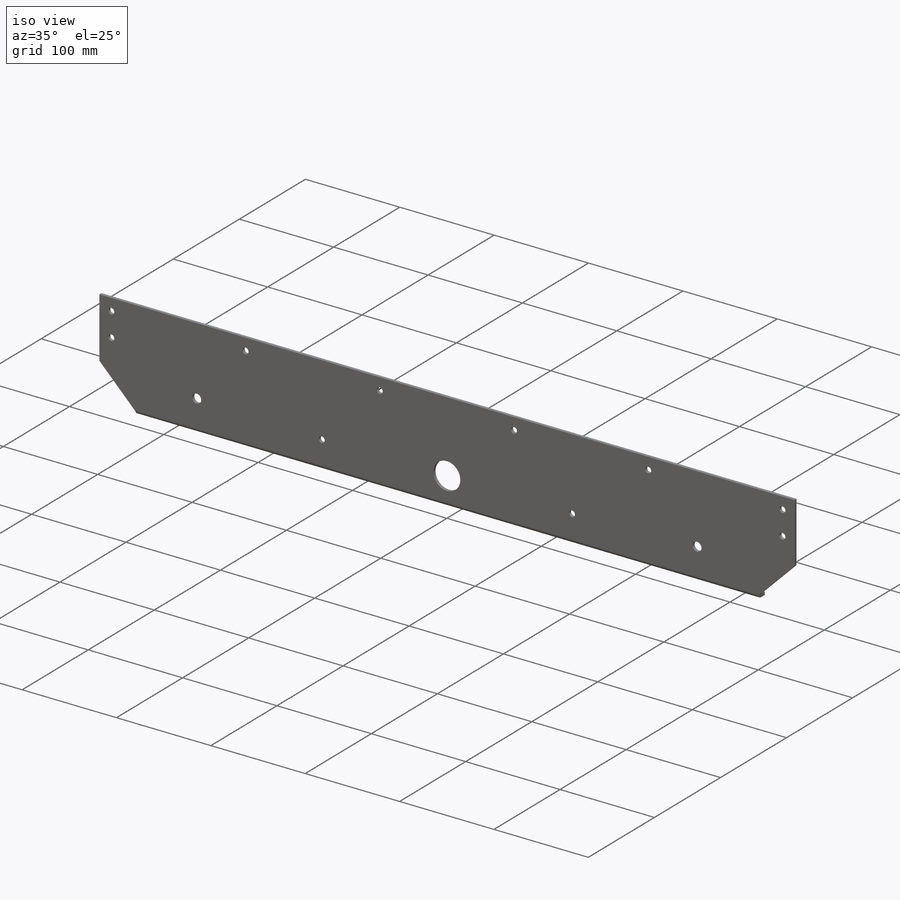
[diagram: iso view]
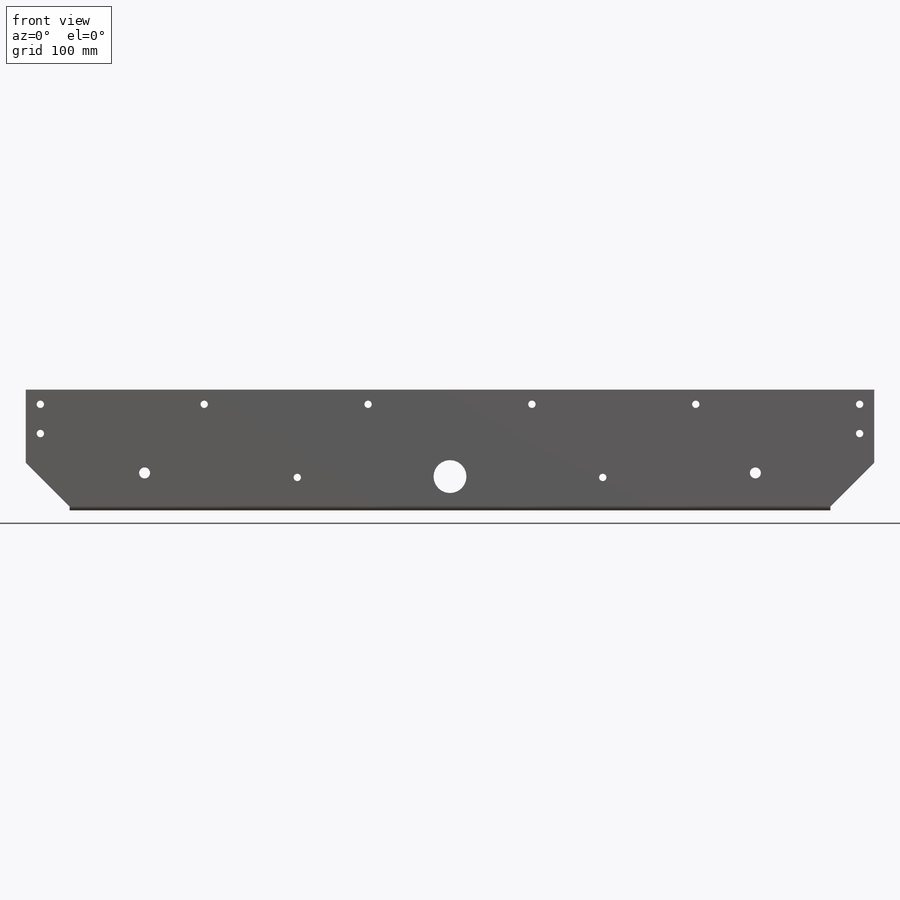
[diagram: front view]
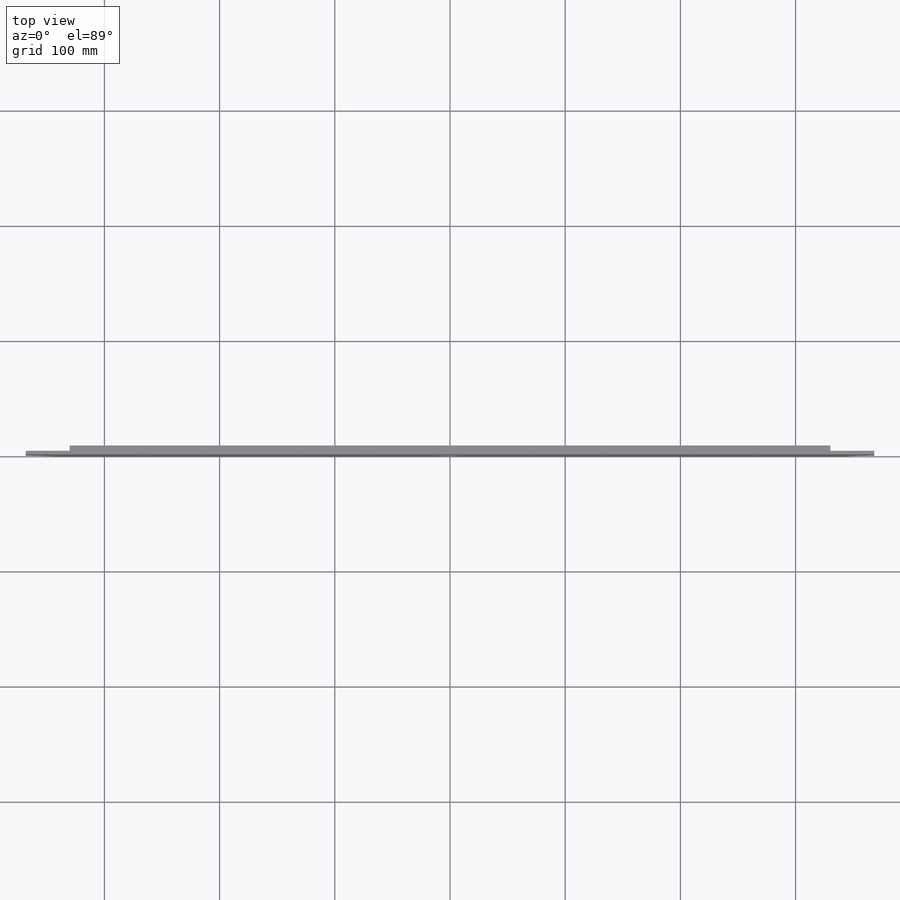
[diagram: top view]
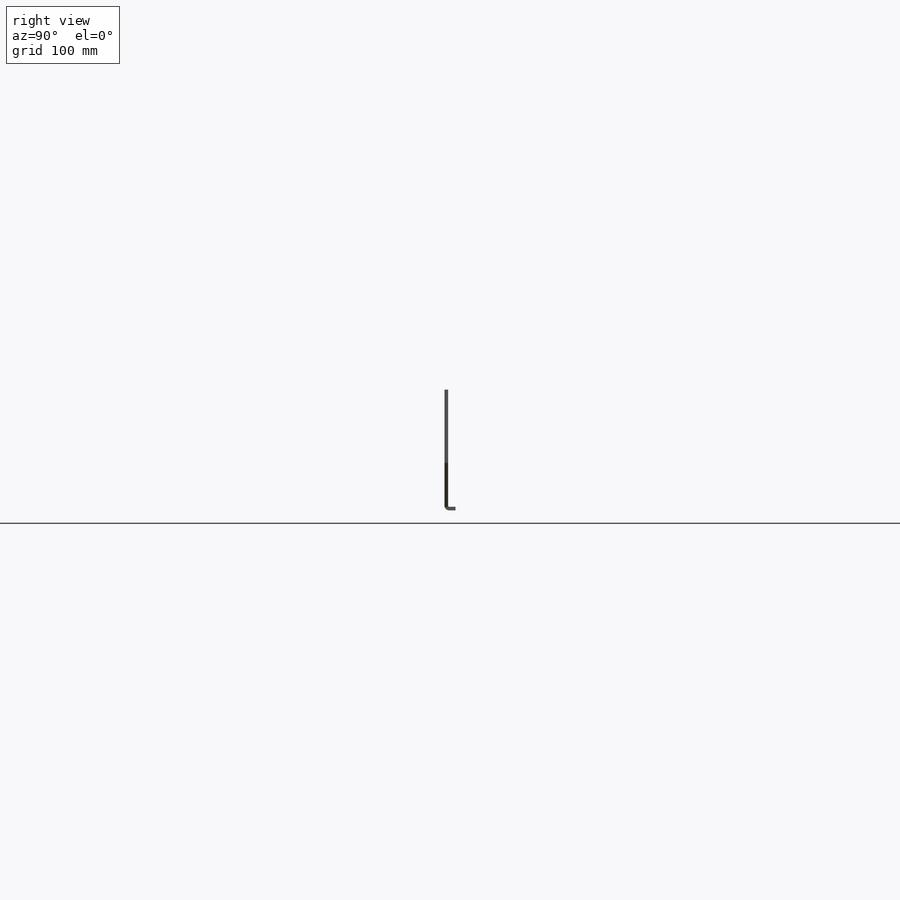
[diagram: right view]
SOLIDWORKS PART (.sldprt)
format: sldprt  version: not decoded by parser v0  size: 321,024 bytes
history: native  units: mm
features: sketch x17, cut_extrude x3, sheet_metal_op x2, material x1 + 3 further entries (+13 scaffold rows collapsed; 5 parser-record rows omitted)
feature tree (44):
  scaffold x13  (default folders/planes/origin — collapsed)
  material  "Material <not specified>"
  sketch  "Sketch1"  dims[c1.D1=736.6mm c1.D2=101.6mm c2.D1=0.7366mm c2.D2=0.5 c2.D3=0.0mm c2.D6=500.0mm]
  sheet_metal_op  "Base-Flange1"
  sketch  "Sketch11"  dims[D1=38.1mm D2=38.1mm]
  cut_extrude  "Cut-Extrude2"  Depth=3.175mm
  sketch  "Sketch8"  dims[c1.D1=0.7366mm c1.D4=90.0deg c1.D5=1.0 c1.D8=1.5875mm c1.D9=1.5875mm c2.D1=0.7366mm c2.D2=500.0mm c2.D3=0.0mm c2.D6=10.0mm c2.D7=6.35mm]
  sketch  "Sketch12"  dims[D2=28.575mm D4=9.525mm D1=25.4mm D3=3.175mm D5=265.1125mm]
  cut_extrude  "Cut-Extrude3"  [1 undecoded]
  sketch  "Sketch13"  dims[D2=6.35mm D1=12.7mm D3=25.4mm D4=12.7mm D5=63.5mm]
  cut_extrude  "Cut-Extrude4"  [1 undecoded]
  sketch  "Bend-Lines1"
  sketch  "Bounding-Box1"
  sheet_metal_op  "Sheet-Metal1"
  "Flat-Pattern1"
  sketch  "Bend-Lines2"
  sketch  "Bounding-Box2"
  parser-record x5  (decoder bookkeeping rows leaked as tree rows — omitted from the tree; the rows remain in map.json)
  sketch  "Bend-Lines2"
  sketch  "Bounding-Box2"
  sketch  "Bend-Lines2"
  sketch  "Bounding-Box2"
  sketch  "Bend-Lines2"
  sketch  "Bounding-Box2"
  "Flatten-<EdgeBend1>1"
  sketch  "Bend-Lines2"
  sketch  "Bounding-Box2"
  "Flatten-<EdgeBend1>1"
decode coverage: 6 of 22 modeling features carry decoded parameters; 3 rows unclassified (native names shown)
note: 2 parameter values undecoded
note: suppression state not decoded; provenance and decode notes live in map.json
